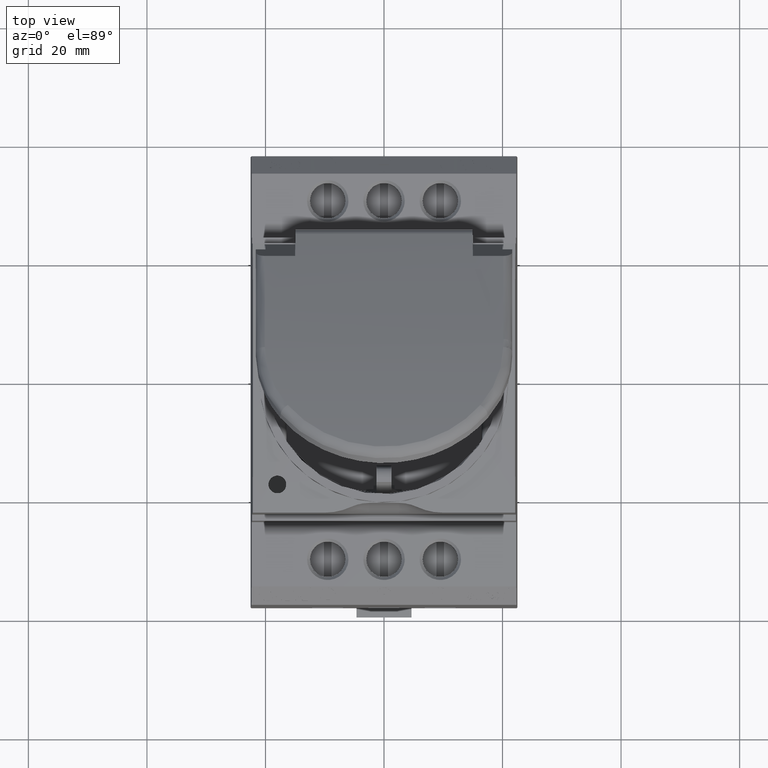
[diagram: clean part render]
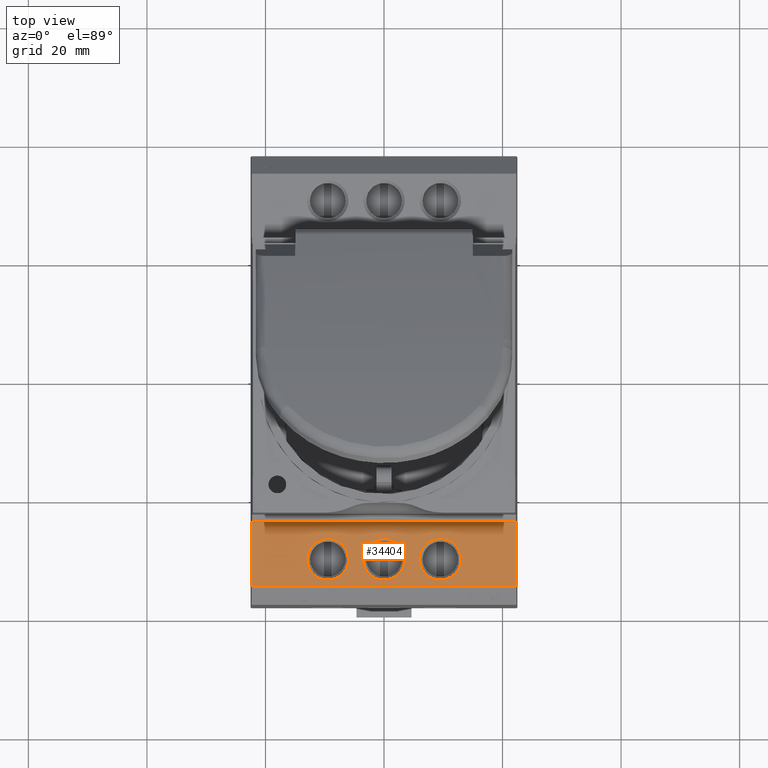
[diagram: same view with one face highlighted and labeled with its STEP entity id]
A machine part, top view. The second image highlights one B-rep face of the part: STEP entity #34404.
In plain terms, the highlighted planar face has unit normal (0, 0, -1).
Its self-contained STEP definition (entity closure, byte-faithful):
#2786 = AXIS2_PLACEMENT_3D ( 'NONE', #13296, #13285, #13286 ) ;
#11343 = CARTESIAN_POINT ( 'NONE',  ( -5.999999999994232200, -30.24999999999993600, -5.100000000027685100 ) ) ;
#11390 = CARTESIAN_POINT ( 'NONE',  ( 5.999999999994232200, -30.24999999999993600, -5.100000000027685100 ) ) ;
#11493 = CARTESIAN_POINT ( 'NONE',  ( -3.499999999938341300, -30.25000000000005300, -5.100000000027685100 ) ) ;
#11547 = CARTESIAN_POINT ( 'NONE',  ( 3.499999999939185100, -30.24999999999993600, -5.100000000027685100 ) ) ;
#11552 = CARTESIAN_POINT ( 'NONE',  ( -13.00000000000597900, -30.25000000000006000, -5.100000000027685100 ) ) ;
#11584 = CARTESIAN_POINT ( 'NONE',  ( 13.00000000000597900, -30.25000000000004600, -5.100000000027685100 ) ) ;
#13283 = PLANE ( 'NONE',  #2786 ) ;
#13285 = DIRECTION ( 'NONE',  ( 0.0000000000000000000, 0.0000000000000000000, -1.000000000000000000 ) ) ;
#13286 = DIRECTION ( 'NONE',  ( -1.000000000000000000, 0.0000000000000000000, 0.0000000000000000000 ) ) ;
#13294 = FACE_BOUND ( 'NONE', #25825, .T. ) ;
#13296 = CARTESIAN_POINT ( 'NONE',  ( 41.75173592734355300, -23.84999999999929800, -5.100000000000000500 ) ) ;
#13299 = FACE_BOUND ( 'NONE', #25820, .T. ) ;
#13302 = FACE_OUTER_BOUND ( 'NONE', #25764, .T. ) ;
#13310 = FACE_BOUND ( 'NONE', #25815, .T. ) ;
#24156 = B_SPLINE_CURVE_WITH_KNOTS ( 'NONE', 3,
 ( #56885, #56840, #56854, #56860, #56832, #56874, #56856, #56834, #56877, #56849, #56835, #56867, #56862, #56841, #56844, #56851, #56872, #56845 ),
 .UNSPECIFIED., .F., .F.,
 ( 4, 2, 2, 2, 2, 2, 2, 2, 4 ),
 ( 0.0000000000000000000, 0.1250000000000000000, 0.2500000000000000000, 0.3750000000000000000, 0.5000000000000000000, 0.6250000000000000000, 0.7500000000000000000, 0.8750000000000000000, 1.000000000000000000 ),
 .UNSPECIFIED. ) ;
#25764 = EDGE_LOOP ( 'NONE', ( #35099, #35120, #35047, #35055 ) ) ;
#25815 = EDGE_LOOP ( 'NONE', ( #35129, #35054 ) ) ;
#25820 = EDGE_LOOP ( 'NONE', ( #35025, #35146 ) ) ;
#25825 = EDGE_LOOP ( 'NONE', ( #35088, #35144 ) ) ;
#28557 = EDGE_CURVE ( 'NONE', #42888, #42933, #42124, .T. ) ;
#28566 = EDGE_CURVE ( 'NONE', #42931, #42843, #42125, .T. ) ;
#28680 = EDGE_CURVE ( 'NONE', #42906, #42900, #24156, .T. ) ;
#28752 = EDGE_CURVE ( 'NONE', #39579, #39597, #59771, .T. ) ;
#28764 = EDGE_CURVE ( 'NONE', #39597, #39600, #59851, .T. ) ;
#28772 = EDGE_CURVE ( 'NONE', #39541, #39579, #59862, .T. ) ;
#28857 = EDGE_CURVE ( 'NONE', #39541, #39600, #60389, .T. ) ;
#31211 = CARTESIAN_POINT ( 'NONE',  ( -22.32260865356502300, -23.97500475979863000, -5.099999999999997900 ) ) ;
#31235 = CARTESIAN_POINT ( 'NONE',  ( -22.32260865356502000, -34.81760846317315100, -5.099999999999988100 ) ) ;
#31293 = CARTESIAN_POINT ( 'NONE',  ( 22.32260865356494500, -23.97500475979804300, -5.100000000000002300 ) ) ;
#31305 = CARTESIAN_POINT ( 'NONE',  ( 22.32260865356494900, -34.81760846317315100, -5.099999999999989900 ) ) ;
#34404 = ADVANCED_FACE ( 'NONE', ( #13294, #13299, #13310, #13302 ), #13283, .F. ) ;
#35025 = ORIENTED_EDGE ( 'NONE', *, *, #28557, .F. ) ;
#35047 = ORIENTED_EDGE ( 'NONE', *, *, #28752, .F. ) ;
#35054 = ORIENTED_EDGE ( 'NONE', *, *, #40108, .F. ) ;
#35055 = ORIENTED_EDGE ( 'NONE', *, *, #28772, .F. ) ;
#35088 = ORIENTED_EDGE ( 'NONE', *, *, #28566, .F. ) ;
#35099 = ORIENTED_EDGE ( 'NONE', *, *, #28857, .T. ) ;
#35120 = ORIENTED_EDGE ( 'NONE', *, *, #28764, .F. ) ;
#35129 = ORIENTED_EDGE ( 'NONE', *, *, #28680, .F. ) ;
#35144 = ORIENTED_EDGE ( 'NONE', *, *, #40087, .F. ) ;
#35146 = ORIENTED_EDGE ( 'NONE', *, *, #40053, .F. ) ;
#39541 = VERTEX_POINT ( 'NONE', #31293 ) ;
#39579 = VERTEX_POINT ( 'NONE', #31305 ) ;
#39597 = VERTEX_POINT ( 'NONE', #31235 ) ;
#39600 = VERTEX_POINT ( 'NONE', #31211 ) ;
#40053 = EDGE_CURVE ( 'NONE', #42933, #42888, #58499, .T. ) ;
#40087 = EDGE_CURVE ( 'NONE', #42843, #42931, #58572, .T. ) ;
#40108 = EDGE_CURVE ( 'NONE', #42900, #42906, #58697, .T. ) ;
#42124 = B_SPLINE_CURVE_WITH_KNOTS ( 'NONE', 3,
 ( #55947, #55897, #55948, #56372, #56395, #56447, #56495, #56450, #56530, #55693, #55700, #55754, #52801, #52802, #57143, #57110, #57141, #57142 ),
 .UNSPECIFIED., .F., .F.,
 ( 4, 2, 2, 2, 2, 2, 2, 2, 4 ),
 ( 0.0000000000000000000, 0.1250000000000000000, 0.2500000000000000000, 0.3750000000000000000, 0.5000000000000000000, 0.6250000000000000000, 0.7500000000000000000, 0.8750000000000000000, 1.000000000000000000 ),
 .UNSPECIFIED. ) ;
#42125 = B_SPLINE_CURVE_WITH_KNOTS ( 'NONE', 3,
 ( #57107, #57121, #57129, #57122, #57124, #57125, #57130, #57131, #57132, #57134, #57135, #57136, #57176, #57180, #57190, #57161, #57179, #57192 ),
 .UNSPECIFIED., .F., .F.,
 ( 4, 2, 2, 2, 2, 2, 2, 2, 4 ),
 ( 0.0000000000000000000, 0.1249999999999999200, 0.2499999999999998300, 0.3749999999999997800, 0.4999999999999996700, 0.6249999999999995600, 0.7499999999999996700, 0.8749999999999998900, 1.000000000000000000 ),
 .UNSPECIFIED. ) ;
#42843 = VERTEX_POINT ( 'NONE', #11390 ) ;
#42888 = VERTEX_POINT ( 'NONE', #11343 ) ;
#42900 = VERTEX_POINT ( 'NONE', #11493 ) ;
#42906 = VERTEX_POINT ( 'NONE', #11547 ) ;
#42931 = VERTEX_POINT ( 'NONE', #11584 ) ;
#42933 = VERTEX_POINT ( 'NONE', #11552 ) ;
#43806 = CARTESIAN_POINT ( 'NONE',  ( -7.737333568687329700, -33.30825235926402400, -5.100000000027194800 ) ) ;
#43808 = CARTESIAN_POINT ( 'NONE',  ( -6.441747640735362000, -32.01266643131202000, -5.100000000027193900 ) ) ;
#43813 = CARTESIAN_POINT ( 'NONE',  ( -9.958148928651519700, -33.75000000002765400, -5.100000000027193900 ) ) ;
#43817 = CARTESIAN_POINT ( 'NONE',  ( -13.00000000002708800, -30.70814892865218900, -5.100000000027193900 ) ) ;
#43825 = CARTESIAN_POINT ( 'NONE',  ( -13.00000000000597900, -30.25000000000006000, -5.100000000027685100 ) ) ;
#43827 = CARTESIAN_POINT ( 'NONE',  ( -12.55825235926347400, -32.01266643131211300, -5.100000000027193000 ) ) ;
#43828 = CARTESIAN_POINT ( 'NONE',  ( -8.583882404734680400, -33.65890436836600900, -5.100000000027193900 ) ) ;
#43832 = CARTESIAN_POINT ( 'NONE',  ( -12.90890436836546600, -31.16611759526477200, -5.100000000027193900 ) ) ;
#43836 = CARTESIAN_POINT ( 'NONE',  ( -11.65091351992859700, -33.04883394841576900, -5.100000000027194800 ) ) ;
#43845 = CARTESIAN_POINT ( 'NONE',  ( -12.29883394841515100, -32.40091351992923300, -5.100000000027193900 ) ) ;
#43848 = CARTESIAN_POINT ( 'NONE',  ( -11.26266643131146400, -33.30825235926408800, -5.100000000027193900 ) ) ;
#43849 = CARTESIAN_POINT ( 'NONE',  ( -10.41611759526411000, -33.65890436836605200, -5.100000000027194800 ) ) ;
#43852 = CARTESIAN_POINT ( 'NONE',  ( -9.041851071347261700, -33.75000000002764000, -5.100000000027194800 ) ) ;
#43853 = CARTESIAN_POINT ( 'NONE',  ( -7.349086480070211800, -33.04883394841568400, -5.100000000027193900 ) ) ;
#43854 = CARTESIAN_POINT ( 'NONE',  ( -6.701166051583677500, -32.40091351992915500, -5.100000000027194800 ) ) ;
#43855 = CARTESIAN_POINT ( 'NONE',  ( -6.091095631633405300, -31.16611759526465500, -5.100000000027193900 ) ) ;
#43857 = CARTESIAN_POINT ( 'NONE',  ( -5.999999999971798600, -30.70814892865207600, -5.100000000027193900 ) ) ;
#43858 = CARTESIAN_POINT ( 'NONE',  ( -5.999999999994232200, -30.24999999999993600, -5.100000000027685100 ) ) ;
#43934 = CARTESIAN_POINT ( 'NONE',  ( 5.999999999994232200, -30.24999999999993600, -5.100000000027685100 ) ) ;
#43936 = CARTESIAN_POINT ( 'NONE',  ( 5.999999999971796800, -30.70814892865206900, -5.100000000027193900 ) ) ;
#43981 = CARTESIAN_POINT ( 'NONE',  ( 9.041851071347263500, -33.75000000002763300, -5.100000000027193900 ) ) ;
#43982 = CARTESIAN_POINT ( 'NONE',  ( 12.29883394841515300, -32.40091351992923300, -5.100000000027194800 ) ) ;
#43989 = CARTESIAN_POINT ( 'NONE',  ( 9.958148928651517900, -33.75000000002765400, -5.100000000027194800 ) ) ;
#43992 = CARTESIAN_POINT ( 'NONE',  ( 6.701166051583677500, -32.40091351992914100, -5.100000000027193900 ) ) ;
#43993 = CARTESIAN_POINT ( 'NONE',  ( 11.26266643131146400, -33.30825235926408100, -5.100000000027194800 ) ) ;
#43994 = CARTESIAN_POINT ( 'NONE',  ( 12.55825235926347900, -32.01266643131212700, -5.100000000027193900 ) ) ;
#43996 = CARTESIAN_POINT ( 'NONE',  ( 6.441747640735362000, -32.01266643131200600, -5.100000000027193000 ) ) ;
#43997 = CARTESIAN_POINT ( 'NONE',  ( 13.00000000000597900, -30.25000000000004600, -5.100000000027685100 ) ) ;
#43998 = CARTESIAN_POINT ( 'NONE',  ( 10.41611759526410800, -33.65890436836605900, -5.100000000027193900 ) ) ;
#44010 = CARTESIAN_POINT ( 'NONE',  ( 7.737333568687328800, -33.30825235926402400, -5.100000000027193900 ) ) ;
#44022 = CARTESIAN_POINT ( 'NONE',  ( 6.091095631633404400, -31.16611759526465900, -5.100000000027193900 ) ) ;
#44023 = CARTESIAN_POINT ( 'NONE',  ( 12.90890436836546800, -31.16611759526477600, -5.100000000027193900 ) ) ;
#44024 = CARTESIAN_POINT ( 'NONE',  ( 13.00000000002708800, -30.70814892865218900, -5.100000000027193900 ) ) ;
#44027 = CARTESIAN_POINT ( 'NONE',  ( 8.583882404734678700, -33.65890436836601700, -5.100000000027194800 ) ) ;
#44029 = CARTESIAN_POINT ( 'NONE',  ( 7.349086480070210000, -33.04883394841569800, -5.100000000027194800 ) ) ;
#44030 = CARTESIAN_POINT ( 'NONE',  ( 11.65091351992859200, -33.04883394841576900, -5.100000000027193900 ) ) ;
#44033 = CARTESIAN_POINT ( 'NONE',  ( -0.4581489286370257800, -33.74999999991671700, -5.100000000027193900 ) ) ;
#44039 = CARTESIAN_POINT ( 'NONE',  ( 1.762666431256777900, -33.30825235916709200, -5.100000000027193900 ) ) ;
#44041 = CARTESIAN_POINT ( 'NONE',  ( 3.058252359167680000, -32.01266643125614300, -5.100000000027193900 ) ) ;
#44042 = CARTESIAN_POINT ( 'NONE',  ( 3.499999999939185100, -30.24999999999993600, -5.100000000027685100 ) ) ;
#44044 = CARTESIAN_POINT ( 'NONE',  ( 0.9161175952362614600, -33.65890436825797800, -5.100000000027194800 ) ) ;
#44046 = CARTESIAN_POINT ( 'NONE',  ( -0.9161175952350990600, -33.65890436825799300, -5.100000000027193000 ) ) ;
#44052 = CARTESIAN_POINT ( 'NONE',  ( -3.058252359166567600, -32.01266643125624300, -5.100000000027193900 ) ) ;
#44054 = CARTESIAN_POINT ( 'NONE',  ( -2.150913519860443700, -33.04883394832704400, -5.100000000027193000 ) ) ;
#44056 = CARTESIAN_POINT ( 'NONE',  ( -3.499999999916175100, -30.70814892863767300, -5.100000000027195700 ) ) ;
#44057 = CARTESIAN_POINT ( 'NONE',  ( 3.499999999917245300, -30.70814892863755900, -5.100000000027194800 ) ) ;
#44063 = CARTESIAN_POINT ( 'NONE',  ( -3.499999999938341300, -30.25000000000005300, -5.100000000027685100 ) ) ;
#44064 = CARTESIAN_POINT ( 'NONE',  ( -3.408904368257439800, -31.16611759523572900, -5.100000000027193900 ) ) ;
#44072 = CARTESIAN_POINT ( 'NONE',  ( 3.408904368258524300, -31.16611759523563000, -5.100000000027195700 ) ) ;
#44079 = CARTESIAN_POINT ( 'NONE',  ( 2.798833948327586800, -32.40091351986096400, -5.100000000027193900 ) ) ;
#44082 = CARTESIAN_POINT ( 'NONE',  ( -1.762666431255625900, -33.30825235916714900, -5.100000000027193900 ) ) ;
#44083 = CARTESIAN_POINT ( 'NONE',  ( 2.150913519861586700, -33.04883394832698700, -5.100000000027194800 ) ) ;
#44084 = CARTESIAN_POINT ( 'NONE',  ( 0.4581489286381917900, -33.74999999991669600, -5.100000000027193900 ) ) ;
#44085 = CARTESIAN_POINT ( 'NONE',  ( -2.798833948326463300, -32.40091351986106400, -5.100000000027193900 ) ) ;
#49378 = VECTOR ( 'NONE', #59891, 1000.000000000000000 ) ;
#49405 = VECTOR ( 'NONE', #59852, 1000.000000000000000 ) ;
#49771 = VECTOR ( 'NONE', #60393, 1000.000000000000000 ) ;
#49840 = VECTOR ( 'NONE', #59839, 1000.000000000000000 ) ;
#52801 = CARTESIAN_POINT ( 'NONE',  ( -11.65091351992868400, -27.45116605158429500, -5.100000000027193900 ) ) ;
#52802 = CARTESIAN_POINT ( 'NONE',  ( -12.29883394841522600, -28.09908648007085200, -5.100000000027194800 ) ) ;
#55693 = CARTESIAN_POINT ( 'NONE',  ( -9.958148928651640500, -26.74999999997236700, -5.100000000027194800 ) ) ;
#55700 = CARTESIAN_POINT ( 'NONE',  ( -10.41611759526422200, -26.84109563163398700, -5.100000000027193900 ) ) ;
#55754 = CARTESIAN_POINT ( 'NONE',  ( -11.26266643131157300, -27.19174764073596900, -5.100000000027194800 ) ) ;
#55897 = CARTESIAN_POINT ( 'NONE',  ( -5.999999999971813700, -29.79185107134781100, -5.100000000027193900 ) ) ;
#55947 = CARTESIAN_POINT ( 'NONE',  ( -5.999999999994232200, -30.24999999999993600, -5.100000000027685100 ) ) ;
#55948 = CARTESIAN_POINT ( 'NONE',  ( -6.091095631633437300, -29.33388240473523100, -5.100000000027193900 ) ) ;
#56372 = CARTESIAN_POINT ( 'NONE',  ( -6.441747640735420600, -28.48733356868787700, -5.100000000027193000 ) ) ;
#56395 = CARTESIAN_POINT ( 'NONE',  ( -6.701166051583750300, -28.09908648007076300, -5.100000000027193900 ) ) ;
#56447 = CARTESIAN_POINT ( 'NONE',  ( -7.349086480070307700, -27.45116605158422400, -5.100000000027194800 ) ) ;
#56450 = CARTESIAN_POINT ( 'NONE',  ( -8.583882404734790600, -26.84109563163395200, -5.100000000027194800 ) ) ;
#56495 = CARTESIAN_POINT ( 'NONE',  ( -7.737333568687430900, -27.19174764073591500, -5.100000000027193900 ) ) ;
#56530 = CARTESIAN_POINT ( 'NONE',  ( -9.041851071347379000, -26.74999999997234600, -5.100000000027193900 ) ) ;
#56832 = CARTESIAN_POINT ( 'NONE',  ( 2.798833948327516600, -28.09908648013893600, -5.100000000027193900 ) ) ;
#56834 = CARTESIAN_POINT ( 'NONE',  ( 0.9161175952361496600, -26.84109563174200000, -5.100000000027194800 ) ) ;
#56835 = CARTESIAN_POINT ( 'NONE',  ( -0.9161175952352089700, -26.84109563174203200, -5.100000000027193900 ) ) ;
#56840 = CARTESIAN_POINT ( 'NONE',  ( 3.499999999917227100, -29.79185107136233400, -5.100000000027193900 ) ) ;
#56841 = CARTESIAN_POINT ( 'NONE',  ( -2.798833948326533900, -28.09908648013902500, -5.100000000027194800 ) ) ;
#56844 = CARTESIAN_POINT ( 'NONE',  ( -3.058252359166626200, -28.48733356874385000, -5.100000000027193900 ) ) ;
#56845 = CARTESIAN_POINT ( 'NONE',  ( -3.499999999938341300, -30.25000000000005300, -5.100000000027685100 ) ) ;
#56849 = CARTESIAN_POINT ( 'NONE',  ( -0.4581489286371400700, -26.75000000008330000, -5.100000000027194800 ) ) ;
#56851 = CARTESIAN_POINT ( 'NONE',  ( -3.408904368257469100, -29.33388240476437800, -5.100000000027193900 ) ) ;
#56854 = CARTESIAN_POINT ( 'NONE',  ( 3.408904368258493200, -29.33388240476426400, -5.100000000027193900 ) ) ;
#56856 = CARTESIAN_POINT ( 'NONE',  ( 1.762666431256677500, -27.19174764083284800, -5.100000000027193900 ) ) ;
#56860 = CARTESIAN_POINT ( 'NONE',  ( 3.058252359167620500, -28.48733356874375000, -5.100000000027193000 ) ) ;
#56862 = CARTESIAN_POINT ( 'NONE',  ( -2.150913519860534700, -27.45116605167301700, -5.100000000027193900 ) ) ;
#56867 = CARTESIAN_POINT ( 'NONE',  ( -1.762666431255724500, -27.19174764083290800, -5.100000000027194800 ) ) ;
#56872 = CARTESIAN_POINT ( 'NONE',  ( -3.499999999916188800, -29.79185107136245100, -5.100000000027193900 ) ) ;
#56874 = CARTESIAN_POINT ( 'NONE',  ( 2.150913519861496100, -27.45116605167294200, -5.100000000027194800 ) ) ;
#56877 = CARTESIAN_POINT ( 'NONE',  ( 0.4581489286380771600, -26.75000000008328600, -5.100000000027193900 ) ) ;
#56885 = CARTESIAN_POINT ( 'NONE',  ( 3.499999999939185100, -30.24999999999993600, -5.100000000027685100 ) ) ;
#57107 = CARTESIAN_POINT ( 'NONE',  ( 13.00000000000597900, -30.25000000000004600, -5.100000000027685100 ) ) ;
#57110 = CARTESIAN_POINT ( 'NONE',  ( -12.90890436836549400, -29.33388240473534500, -5.100000000027193900 ) ) ;
#57121 = CARTESIAN_POINT ( 'NONE',  ( 13.00000000002709100, -29.79185107134787500, -5.100000000027193900 ) ) ;
#57122 = CARTESIAN_POINT ( 'NONE',  ( 12.55825235926351100, -28.48733356868793400, -5.100000000027193000 ) ) ;
#57124 = CARTESIAN_POINT ( 'NONE',  ( 12.29883394841519700, -28.09908648007082000, -5.100000000027193900 ) ) ;
#57125 = CARTESIAN_POINT ( 'NONE',  ( 11.65091351992865400, -27.45116605158426600, -5.100000000027193000 ) ) ;
#57129 = CARTESIAN_POINT ( 'NONE',  ( 12.90890436836548000, -29.33388240473529500, -5.100000000027194800 ) ) ;
#57130 = CARTESIAN_POINT ( 'NONE',  ( 11.26266643131153700, -27.19174764073595400, -5.100000000027193900 ) ) ;
#57131 = CARTESIAN_POINT ( 'NONE',  ( 10.41611759526419300, -26.84109563163398300, -5.100000000027194800 ) ) ;
#57132 = CARTESIAN_POINT ( 'NONE',  ( 9.958148928651608500, -26.74999999997236700, -5.100000000027194800 ) ) ;
#57134 = CARTESIAN_POINT ( 'NONE',  ( 9.041851071347355900, -26.74999999997236000, -5.100000000027194800 ) ) ;
#57135 = CARTESIAN_POINT ( 'NONE',  ( 8.583882404734769300, -26.84109563163395900, -5.100000000027194800 ) ) ;
#57136 = CARTESIAN_POINT ( 'NONE',  ( 7.737333568687415000, -27.19174764073591900, -5.100000000027194800 ) ) ;
#57141 = CARTESIAN_POINT ( 'NONE',  ( -13.00000000002710400, -29.79185107134793100, -5.100000000027193900 ) ) ;
#57142 = CARTESIAN_POINT ( 'NONE',  ( -13.00000000000597900, -30.25000000000006000, -5.100000000027685100 ) ) ;
#57143 = CARTESIAN_POINT ( 'NONE',  ( -12.55825235926353600, -28.48733356868799000, -5.100000000027193900 ) ) ;
#57161 = CARTESIAN_POINT ( 'NONE',  ( 6.091095631633432800, -29.33388240473523500, -5.100000000027193000 ) ) ;
#57176 = CARTESIAN_POINT ( 'NONE',  ( 7.349086480070291700, -27.45116605158423400, -5.100000000027194800 ) ) ;
#57179 = CARTESIAN_POINT ( 'NONE',  ( 5.999999999971812800, -29.79185107134780700, -5.100000000027192100 ) ) ;
#57180 = CARTESIAN_POINT ( 'NONE',  ( 6.701166051583743200, -28.09908648007077400, -5.100000000027195700 ) ) ;
#57190 = CARTESIAN_POINT ( 'NONE',  ( 6.441747640735417900, -28.48733356868788700, -5.100000000027193900 ) ) ;
#57192 = CARTESIAN_POINT ( 'NONE',  ( 5.999999999994232200, -30.24999999999993600, -5.100000000027685100 ) ) ;
#58499 = B_SPLINE_CURVE_WITH_KNOTS ( 'NONE', 3,
 ( #43825, #43817, #43832, #43827, #43845, #43836, #43848, #43849, #43813, #43852, #43828, #43806, #43853, #43854, #43808, #43855, #43857, #43858 ),
 .UNSPECIFIED., .F., .F.,
 ( 4, 2, 2, 2, 2, 2, 2, 2, 4 ),
 ( 0.0000000000000000000, 0.1250000000000000000, 0.2500000000000000000, 0.3750000000000000000, 0.5000000000000000000, 0.6250000000000000000, 0.7500000000000000000, 0.8750000000000000000, 1.000000000000000000 ),
 .UNSPECIFIED. ) ;
#58572 = B_SPLINE_CURVE_WITH_KNOTS ( 'NONE', 3,
 ( #43934, #43936, #44022, #43996, #43992, #44029, #44010, #44027, #43981, #43989, #43998, #43993, #44030, #43982, #43994, #44023, #44024, #43997 ),
 .UNSPECIFIED., .F., .F.,
 ( 4, 2, 2, 2, 2, 2, 2, 2, 4 ),
 ( 0.0000000000000000000, 0.1250000000000000000, 0.2500000000000000000, 0.3750000000000000000, 0.5000000000000000000, 0.6250000000000000000, 0.7500000000000000000, 0.8750000000000000000, 1.000000000000000000 ),
 .UNSPECIFIED. ) ;
#58697 = B_SPLINE_CURVE_WITH_KNOTS ( 'NONE', 3,
 ( #44063, #44056, #44064, #44052, #44085, #44054, #44082, #44046, #44033, #44084, #44044, #44039, #44083, #44079, #44041, #44072, #44057, #44042 ),
 .UNSPECIFIED., .F., .F.,
 ( 4, 2, 2, 2, 2, 2, 2, 2, 4 ),
 ( 0.0000000000000000000, 0.1250000000000001100, 0.2500000000000002200, 0.3750000000000003300, 0.5000000000000004400, 0.6250000000000005600, 0.7500000000000006700, 0.8750000000000007800, 1.000000000000000000 ),
 .UNSPECIFIED. ) ;
#59771 = LINE ( 'NONE', #59830, #49840 ) ;
#59817 = CARTESIAN_POINT ( 'NONE',  ( -22.32260865356509800, 23.94831876901239200, -5.099999999999997000 ) ) ;
#59830 = CARTESIAN_POINT ( 'NONE',  ( 41.75173592734355300, -34.81760846317314400, -5.100000000000000500 ) ) ;
#59839 = DIRECTION ( 'NONE',  ( -1.000000000000000000, 0.0000000000000000000, 0.0000000000000000000 ) ) ;
#59851 = LINE ( 'NONE', #59817, #49405 ) ;
#59852 = DIRECTION ( 'NONE',  ( -1.340346296160071700E-015, 1.000000000000000000, 1.169702492042670700E-017 ) ) ;
#59862 = LINE ( 'NONE', #59882, #49378 ) ;
#59882 = CARTESIAN_POINT ( 'NONE',  ( 22.32260865356494500, -23.84999999999929800, -5.100000000000000500 ) ) ;
#59891 = DIRECTION ( 'NONE',  ( -0.0000000000000000000, -1.000000000000000000, -0.0000000000000000000 ) ) ;
#60361 = CARTESIAN_POINT ( 'NONE',  ( 41.75173592734355300, -23.97500475979751800, -5.100000000000003200 ) ) ;
#60389 = LINE ( 'NONE', #60361, #49771 ) ;
#60393 = DIRECTION ( 'NONE',  ( -1.000000000000000000, -1.724792598959422100E-014, 1.505203697759822200E-016 ) ) ;